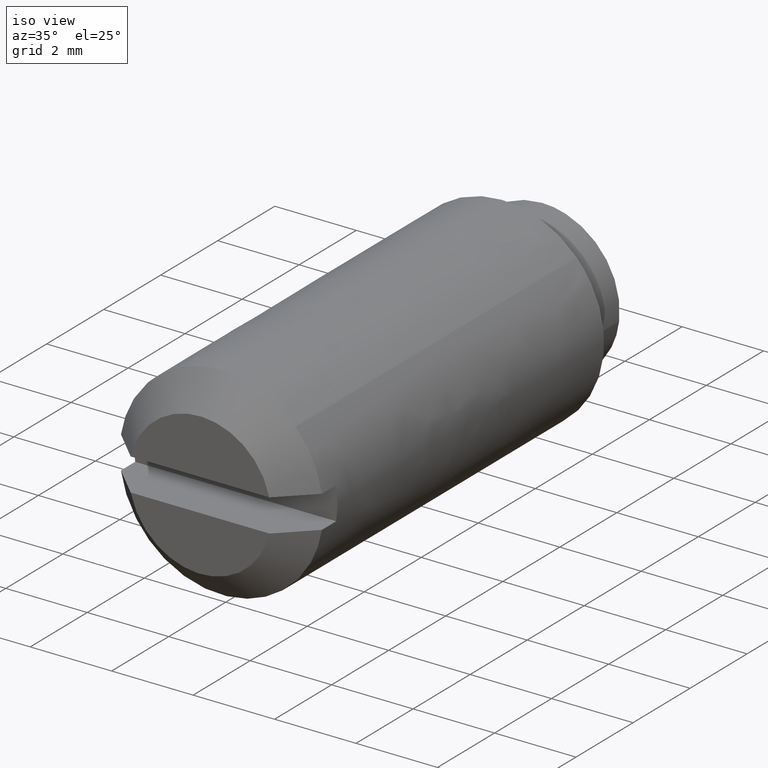
[diagram: clean part render]
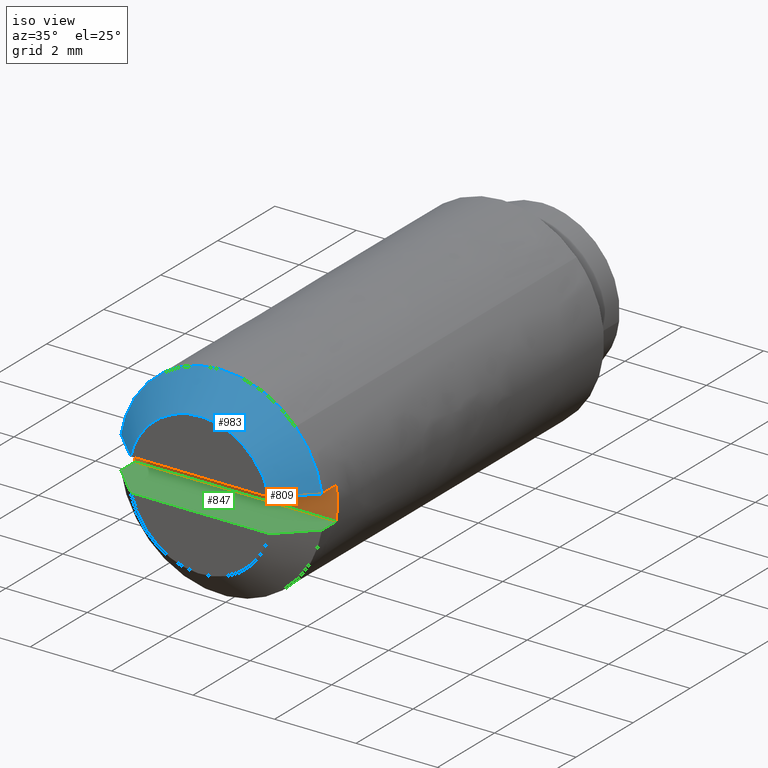
[diagram: same view with three faces highlighted in distinct colors, each labeled with its STEP entity id]
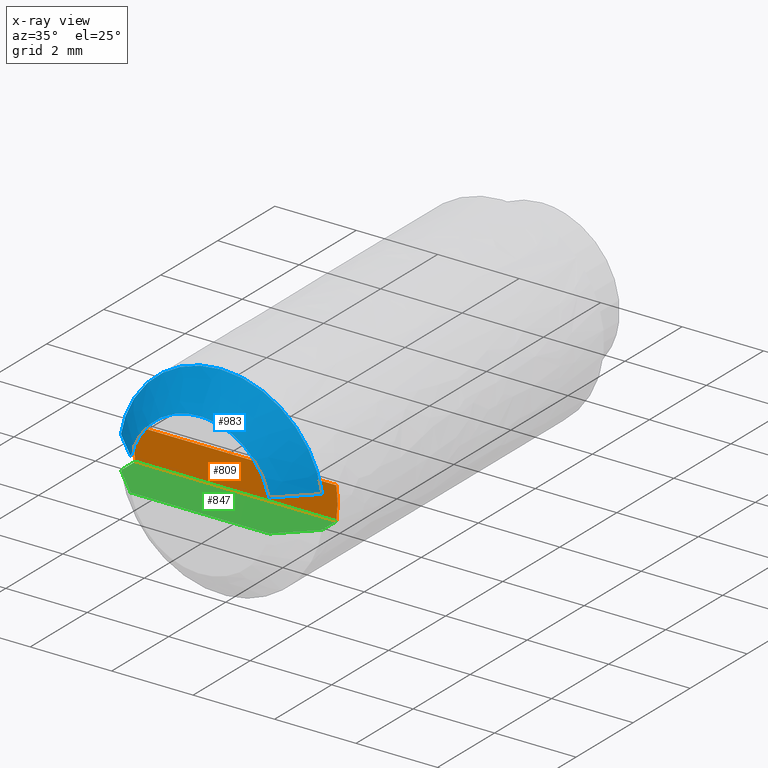
[diagram: x-ray of the same camera — body ghosted, the three highlighted faces saturated]
A machine part, iso view with three faces highlighted in distinct colors.
The next image is the same camera in x-ray (body ghosted, the three faces saturated) — at least one of them is partly hidden behind the body in this view.
Their STEP definitions:

[orange] entity #809 — the highlighted face is a freeform B-spline surface patch.
#643=CARTESIAN_POINT('',(-2.467793000000000,-11.650000000000000,-0.400000000000000));
#644=VERTEX_POINT('',#643);
#650=CARTESIAN_POINT('',(-2.467792535850615,-11.650000000000000,0.399999999999991));
#651=VERTEX_POINT('',#650);
#652=CARTESIAN_POINT('',(-2.467792535850615,-11.650000000000000,0.399999999999990));
#653=CARTESIAN_POINT('',(-2.532627801631262,-11.650000000000000,0.000000037616551));
#654=CARTESIAN_POINT('',(-2.467793000000000,-11.650000000000000,-0.400000000000000));
#662=(BOUNDED_CURVE()B_SPLINE_CURVE(2,(#652,#653,#654),.UNSPECIFIED.,.F.,.U.)CURVE()GEOMETRIC_REPRESENTATION_ITEM()QUASI_UNIFORM_CURVE()RATIONAL_B_SPLINE_CURVE((1.0,0.987117016716690,1.0))REPRESENTATION_ITEM(''));
#663=EDGE_CURVE('',#651,#644,#662,.T.);
#732=CARTESIAN_POINT('',(2.467793000000000,-11.650000000000000,0.399999999999991));
#733=VERTEX_POINT('',#732);
#739=CARTESIAN_POINT('',(2.467793000000000,-11.650000000000000,-0.400000000000000));
#740=VERTEX_POINT('',#739);
#741=CARTESIAN_POINT('',(2.467793000000000,-11.650000000000000,-0.400000000000000));
#742=CARTESIAN_POINT('',(2.532627795534064,-11.650000000000004,-5.800482E-015));
#743=CARTESIAN_POINT('',(2.467793000000000,-11.650000000000000,0.399999999999991));
#751=(BOUNDED_CURVE()B_SPLINE_CURVE(2,(#741,#742,#743),.UNSPECIFIED.,.F.,.U.)CURVE()GEOMETRIC_REPRESENTATION_ITEM()QUASI_UNIFORM_CURVE()RATIONAL_B_SPLINE_CURVE((1.0,0.987117019093134,1.0))REPRESENTATION_ITEM(''));
#752=EDGE_CURVE('',#740,#733,#751,.T.);
#790=CARTESIAN_POINT('',(-2.749592367975497,-11.650000000000000,0.439960005959263));
#791=CARTESIAN_POINT('',(2.749592258257897,-11.650000000000000,0.439960005959263));
#792=CARTESIAN_POINT('',(-2.749592367975497,-11.650000000000000,-0.439960020264387));
#793=CARTESIAN_POINT('',(2.749592258257897,-11.650000000000000,-0.439960020264387));
#794=B_SPLINE_SURFACE_WITH_KNOTS('',1,1,((#790,#792),(#791,#793)),.UNSPECIFIED.,.F.,.F.,.U.,(2,2),(2,2),(0.0,5.499184626233394),(0.041708327125758,0.958291687775403),.UNSPECIFIED.);
#795=ORIENTED_EDGE('',*,*,#752,.T.);
#796=CARTESIAN_POINT('',(-2.467792535850615,-11.650000000000000,0.399999999999991));
#797=CARTESIAN_POINT('',(2.467793000000000,-11.650000000000000,0.399999999999991));
#798=QUASI_UNIFORM_CURVE('',1,(#796,#797),.UNSPECIFIED.,.F.,.U.);
#799=EDGE_CURVE('',#651,#733,#798,.T.);
#800=ORIENTED_EDGE('',*,*,#799,.F.);
#801=ORIENTED_EDGE('',*,*,#663,.T.);
#802=CARTESIAN_POINT('',(2.467793000000000,-11.650000000000000,-0.400000000000000));
#803=CARTESIAN_POINT('',(-2.467793000000000,-11.650000000000000,-0.400000000000000));
#804=QUASI_UNIFORM_CURVE('',1,(#802,#803),.UNSPECIFIED.,.F.,.U.);
#805=EDGE_CURVE('',#740,#644,#804,.T.);
#806=ORIENTED_EDGE('',*,*,#805,.F.);
#807=EDGE_LOOP('',(#795,#800,#801,#806));
#808=FACE_OUTER_BOUND('',#807,.T.);
#809=ADVANCED_FACE('',(#808),#794,.F.);

[blue] entity #983 — the highlighted face is a freeform B-spline surface patch.
#665=CARTESIAN_POINT('',(-2.467792535850615,-12.150000000000000,0.399999999999991));
#666=VERTEX_POINT('',#665);
#672=CARTESIAN_POINT('',(1.818315981910234,-12.150000000000000,1.715729391257244));
#673=VERTEX_POINT('',#672);
#674=CARTESIAN_POINT('',(1.818315981910233,-12.149999999999999,1.715729391257244));
#675=CARTESIAN_POINT('',(1.078293002430174,-12.150000000000004,2.499999983984353));
#676=CARTESIAN_POINT('',(0.000000037131944,-12.150000000000000,2.499999999999999));
#677=CARTESIAN_POINT('',(-2.127407353370267,-12.150000000000000,2.500000031597907));
#678=CARTESIAN_POINT('',(-2.467792535850615,-12.150000000000000,0.399999999999992));
#686=(BOUNDED_CURVE()B_SPLINE_CURVE(2,(#674,#675,#676,#677,#678),.UNSPECIFIED.,.F.,.U.)B_SPLINE_CURVE_WITH_KNOTS((3,2,3),(0.212803628645489,0.500000000000000,1.0),.UNSPECIFIED.)CURVE()GEOMETRIC_REPRESENTATION_ITEM()RATIONAL_B_SPLINE_CURVE((0.883427648863178,0.863051734739189,1.0,0.761577305773540,1.0))REPRESENTATION_ITEM(''));
#687=EDGE_CURVE('',#673,#666,#686,.T.);
#717=CARTESIAN_POINT('',(2.467793000000000,-12.150000000000000,0.399999999999991));
#718=VERTEX_POINT('',#717);
#719=CARTESIAN_POINT('',(2.467793000000000,-12.150000000000000,0.399999999999991));
#720=CARTESIAN_POINT('',(2.345002795860268,-12.149999999999999,1.157550982614433));
#721=CARTESIAN_POINT('',(1.818315981910233,-12.149999999999999,1.715729391257244));
#729=(BOUNDED_CURVE()B_SPLINE_CURVE(2,(#719,#720,#721),.UNSPECIFIED.,.F.,.U.)B_SPLINE_CURVE_WITH_KNOTS((3,3),(0.0,0.212803628645489),.UNSPECIFIED.)CURVE()GEOMETRIC_REPRESENTATION_ITEM()RATIONAL_B_SPLINE_CURVE((1.0,0.898525571034351,0.883427648863178))REPRESENTATION_ITEM(''));
#730=EDGE_CURVE('',#718,#673,#729,.T.);
#856=CARTESIAN_POINT('',(1.703672503740085,-12.900000000000000,0.399999999999991));
#857=VERTEX_POINT('',#856);
#858=CARTESIAN_POINT('',(1.703672503740085,-12.900000000000000,0.399999999999991));
#859=CARTESIAN_POINT('',(1.764615516513866,-12.840658835844939,0.399999999999991));
#860=CARTESIAN_POINT('',(1.825472964386370,-12.781228711003140,0.399999999999991));
#861=CARTESIAN_POINT('',(2.080599052584818,-12.531664605991240,0.399999999999992));
#862=CARTESIAN_POINT('',(2.274324897358173,-12.340966288524029,0.399999999999992));
#863=CARTESIAN_POINT('',(2.467793000000000,-12.150000000000000,0.399999999999991));
#864=B_SPLINE_CURVE_WITH_KNOTS('',3,(#858,#859,#860,#861,#862,#863),.UNSPECIFIED.,.F.,.U.,(4,2,4),(0.835884056411541,0.874999999999999,1.0),.UNSPECIFIED.);
#865=EDGE_CURVE('',#857,#718,#864,.T.);
#867=CARTESIAN_POINT('',(-1.703672503740085,-12.900000000000000,0.399999999999991));
#868=VERTEX_POINT('',#867);
#874=CARTESIAN_POINT('',(-2.467792535850615,-12.150000000000000,0.399999999999991));
#875=CARTESIAN_POINT('',(-2.273182254908020,-12.342093709223880,0.399999999999992));
#876=CARTESIAN_POINT('',(-2.078308495509723,-12.533919775919220,0.399999999999991));
#877=CARTESIAN_POINT('',(-1.823167580692881,-12.783478675686180,0.399999999999991));
#878=CARTESIAN_POINT('',(-1.763461630120250,-12.841781583011450,0.399999999999991));
#879=CARTESIAN_POINT('',(-1.703672503740085,-12.900000000000000,0.399999999999991));
#880=B_SPLINE_CURVE_WITH_KNOTS('',3,(#874,#875,#876,#877,#878,#879),.UNSPECIFIED.,.F.,.U.,(4,2,4),(0.0,0.124999999999999,0.163147342575306),.UNSPECIFIED.);
#881=EDGE_CURVE('',#666,#868,#880,.T.);
#944=CARTESIAN_POINT('',(1.719380882907873,-12.918749999999999,0.202375744571671));
#945=CARTESIAN_POINT('',(2.501947470679034,-12.130781250000000,0.294485932286016));
#946=CARTESIAN_POINT('',(1.538753624927346,-12.918750000000003,1.736981855403287));
#947=CARTESIAN_POINT('',(2.239108726958814,-12.130781249999997,2.527559427316541));
#948=CARTESIAN_POINT('',(-0.006435402441734,-12.918749999999999,1.731238039119810));
#949=CARTESIAN_POINT('',(-0.009364439852714,-12.130781250000000,2.519201345192127));
#950=CARTESIAN_POINT('',(-1.551624429810814,-12.918750000000003,1.725494222836333));
#951=CARTESIAN_POINT('',(-2.257837606664244,-12.130781249999997,2.510843263067713));
#952=CARTESIAN_POINT('',(-1.720837899384461,-12.918749999999999,0.189587675079552));
#953=CARTESIAN_POINT('',(-2.504067640051961,-12.130781250000000,0.275877444522350));
#961=(BOUNDED_SURFACE()B_SPLINE_SURFACE(1,2,((#944,#946,#948,#950,#952),(#945,#947,#949,#951,#953)),.UNSPECIFIED.,.F.,.F.,.U.)B_SPLINE_SURFACE_WITH_KNOTS((2,2),(3,2,3),(0.0,1.0),(0.0,3.842947207187311,7.685894414374622),.UNSPECIFIED.)GEOMETRIC_REPRESENTATION_ITEM()RATIONAL_B_SPLINE_SURFACE(((1.0,0.746057375061700,1.0,0.746057375061700,1.0),(1.0,0.746057375061700,1.0,0.746057375061700,1.0)))REPRESENTATION_ITEM('')SURFACE());
#962=ORIENTED_EDGE('',*,*,#730,.T.);
#963=ORIENTED_EDGE('',*,*,#687,.T.);
#964=ORIENTED_EDGE('',*,*,#881,.T.);
#965=CARTESIAN_POINT('',(1.703672503740084,-12.900000000000000,0.399999999999991));
#966=CARTESIAN_POINT('',(1.386710177462864,-12.900000000000004,1.749999999999999));
#967=CARTESIAN_POINT('',(0.0,-12.900000000000000,1.749999999999999));
#968=CARTESIAN_POINT('',(-1.386710177462864,-12.900000000000004,1.749999999999999));
#969=CARTESIAN_POINT('',(-1.703672503740084,-12.900000000000000,0.399999999999991));
#977=(BOUNDED_CURVE()B_SPLINE_CURVE(2,(#965,#966,#967,#968,#969),.UNSPECIFIED.,.F.,.U.)B_SPLINE_CURVE_WITH_KNOTS((3,2,3),(0.0,0.500000000000000,1.0),.UNSPECIFIED.)CURVE()GEOMETRIC_REPRESENTATION_ITEM()RATIONAL_B_SPLINE_CURVE((1.0,0.783763812819725,1.0,0.783763812819725,1.0))REPRESENTATION_ITEM(''));
#978=EDGE_CURVE('',#857,#868,#977,.T.);
#979=ORIENTED_EDGE('',*,*,#978,.F.);
#980=ORIENTED_EDGE('',*,*,#865,.T.);
#981=EDGE_LOOP('',(#962,#963,#964,#979,#980));
#982=FACE_OUTER_BOUND('',#981,.T.);
#983=ADVANCED_FACE('',(#982),#961,.T.);

[green] entity #847 — the highlighted face is a freeform B-spline surface patch.
#626=CARTESIAN_POINT('',(-2.467793000000000,-12.150000000000000,-0.400000000000000));
#627=VERTEX_POINT('',#626);
#643=CARTESIAN_POINT('',(-2.467793000000000,-11.650000000000000,-0.400000000000000));
#644=VERTEX_POINT('',#643);
#645=CARTESIAN_POINT('',(-2.467793000000000,-11.650000000000000,-0.400000000000000));
#646=CARTESIAN_POINT('',(-2.467793000000000,-12.150000000000000,-0.400000000000000));
#647=QUASI_UNIFORM_CURVE('',1,(#645,#646),.UNSPECIFIED.,.F.,.U.);
#648=EDGE_CURVE('',#644,#627,#647,.T.);
#739=CARTESIAN_POINT('',(2.467793000000000,-11.650000000000000,-0.400000000000000));
#740=VERTEX_POINT('',#739);
#754=CARTESIAN_POINT('',(2.467793000000000,-12.150000000000000,-0.400000000000000));
#755=VERTEX_POINT('',#754);
#756=CARTESIAN_POINT('',(2.467793000000000,-11.650000000000000,-0.400000000000000));
#757=CARTESIAN_POINT('',(2.467793000000000,-12.150000000000000,-0.400000000000000));
#758=QUASI_UNIFORM_CURVE('',1,(#756,#757),.UNSPECIFIED.,.F.,.U.);
#759=EDGE_CURVE('',#740,#755,#758,.T.);
#802=CARTESIAN_POINT('',(2.467793000000000,-11.650000000000000,-0.400000000000000));
#803=CARTESIAN_POINT('',(-2.467793000000000,-11.650000000000000,-0.400000000000000));
#804=QUASI_UNIFORM_CURVE('',1,(#802,#803),.UNSPECIFIED.,.F.,.U.);
#805=EDGE_CURVE('',#740,#644,#804,.T.);
#810=CARTESIAN_POINT('',(-2.714325511133877,-12.962437116481180,-0.400000000000000));
#811=CARTESIAN_POINT('',(2.714325643516609,-12.962437116481180,-0.400000000000000));
#812=CARTESIAN_POINT('',(-2.714325511133877,-11.587562112383729,-0.400000000000000));
#813=CARTESIAN_POINT('',(2.714325643516609,-11.587562112383729,-0.400000000000000));
#814=B_SPLINE_SURFACE_WITH_KNOTS('',1,1,((#810,#812),(#811,#813)),.UNSPECIFIED.,.F.,.F.,.U.,(2,2),(2,2),(0.0,5.428651154650486),(0.041708589012548,0.958291925077513),.UNSPECIFIED.);
#815=ORIENTED_EDGE('',*,*,#759,.F.);
#816=ORIENTED_EDGE('',*,*,#805,.T.);
#817=ORIENTED_EDGE('',*,*,#648,.T.);
#818=CARTESIAN_POINT('',(-1.703672503740080,-12.900000000000000,-0.400000000000000));
#819=VERTEX_POINT('',#818);
#820=CARTESIAN_POINT('',(-1.703672503740080,-12.900000000000000,-0.400000000000000));
#821=CARTESIAN_POINT('',(-1.764615507487821,-12.840658844627800,-0.400000000000000));
#822=CARTESIAN_POINT('',(-1.825472946364945,-12.781228728592700,-0.400000000000000));
#823=CARTESIAN_POINT('',(-2.080599034620503,-12.531664623679569,-0.400000000000000));
#824=CARTESIAN_POINT('',(-2.274324888380465,-12.340966297384931,-0.400000000000000));
#825=CARTESIAN_POINT('',(-2.467793000000000,-12.150000000000000,-0.400000000000000));
#826=B_SPLINE_CURVE_WITH_KNOTS('',3,(#820,#821,#822,#823,#824,#825),.UNSPECIFIED.,.F.,.U.,(4,2,4),(0.835884064006004,0.875000000000000,1.0),.UNSPECIFIED.);
#827=EDGE_CURVE('',#819,#627,#826,.T.);
#828=ORIENTED_EDGE('',*,*,#827,.F.);
#829=CARTESIAN_POINT('',(1.703672503740080,-12.900000000000000,-0.400000000000000));
#830=VERTEX_POINT('',#829);
#831=CARTESIAN_POINT('',(1.703672503740080,-12.900000000000000,-0.400000000000000));
#832=CARTESIAN_POINT('',(-1.703672503740080,-12.900000000000000,-0.400000000000000));
#833=QUASI_UNIFORM_CURVE('',1,(#831,#832),.UNSPECIFIED.,.F.,.U.);
#834=EDGE_CURVE('',#830,#819,#833,.T.);
#835=ORIENTED_EDGE('',*,*,#834,.F.);
#836=CARTESIAN_POINT('',(2.467793000000000,-12.150000000000000,-0.400000000000000));
#837=CARTESIAN_POINT('',(2.273182650124619,-12.342093660718181,-0.400000000000000));
#838=CARTESIAN_POINT('',(2.078308821835445,-12.533919678951550,-0.400000000000000));
#839=CARTESIAN_POINT('',(1.823167752528801,-12.783478578950630,-0.400000000000000));
#840=CARTESIAN_POINT('',(1.763461716137923,-12.841781534744790,-0.400000000000000));
#841=CARTESIAN_POINT('',(1.703672503740080,-12.900000000000000,-0.400000000000000));
#842=B_SPLINE_CURVE_WITH_KNOTS('',3,(#836,#837,#838,#839,#840,#841),.UNSPECIFIED.,.F.,.U.,(4,2,4),(0.0,0.124999999999999,0.163147383969099),.UNSPECIFIED.);
#843=EDGE_CURVE('',#755,#830,#842,.T.);
#844=ORIENTED_EDGE('',*,*,#843,.F.);
#845=EDGE_LOOP('',(#815,#816,#817,#828,#835,#844));
#846=FACE_OUTER_BOUND('',#845,.T.);
#847=ADVANCED_FACE('',(#846),#814,.T.);